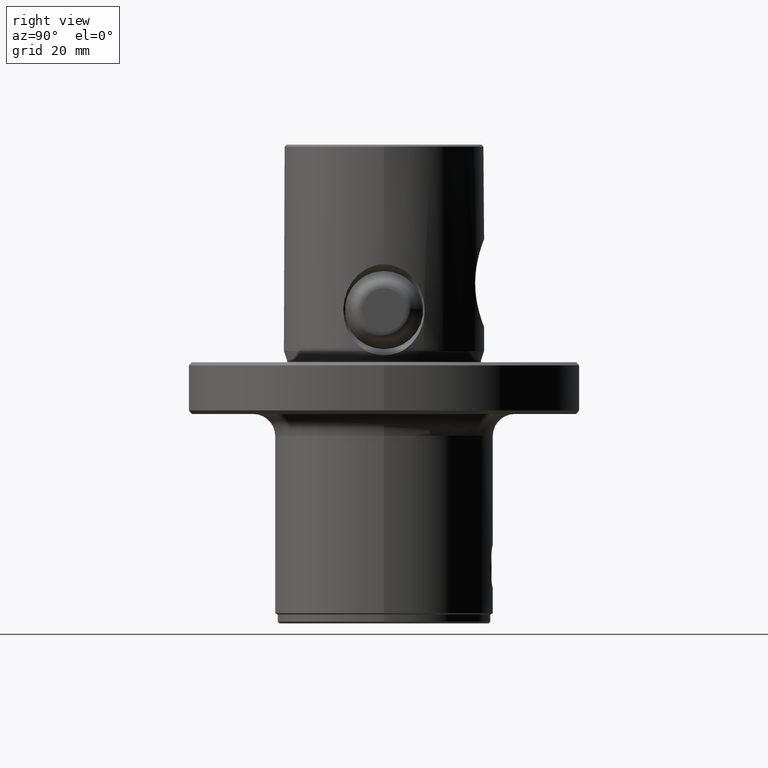
[diagram: clean part render]
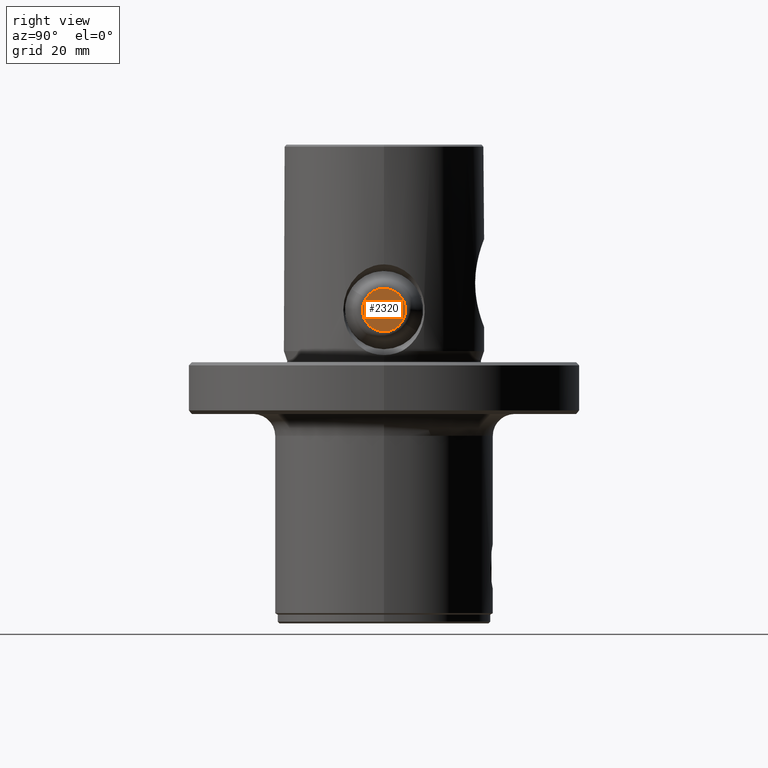
[diagram: same view with one face highlighted and labeled with its STEP entity id]
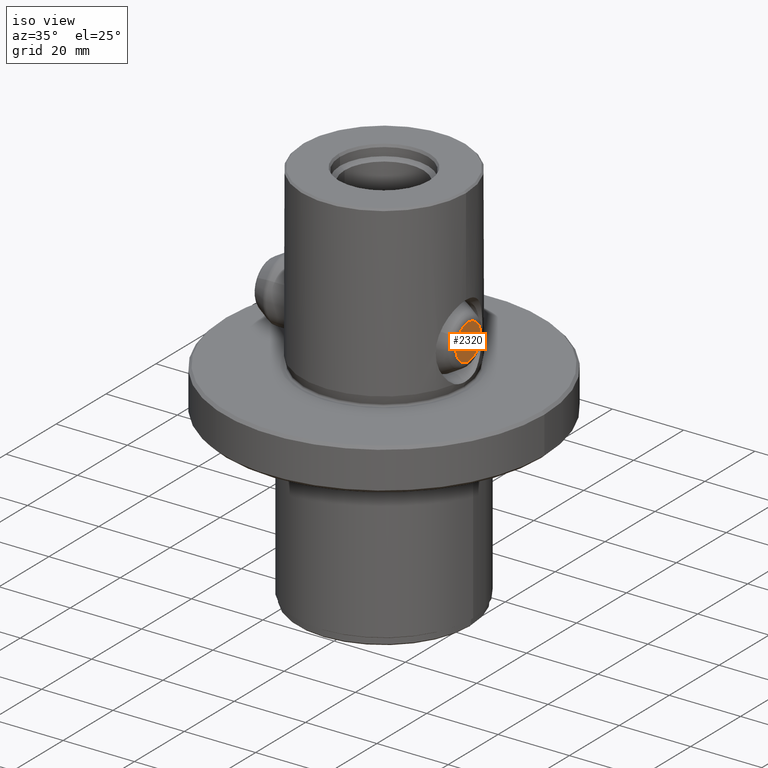
[diagram: same view with one face highlighted and labeled with its STEP entity id]
A machine part, right view. The second image highlights one B-rep face of the part: STEP entity #2320.
A second angle (iso view) of the same face is appended — the face is thin or edge-on in the first view.
In plain terms, the highlighted planar face has unit normal (-1, -0, -0).
Its self-contained STEP definition (entity closure, byte-faithful):
#922=EDGE_CURVE('Kante7',#1234,#1870,#2489,.T.);
#1234=VERTEX_POINT('NONE',#2838);
#1274=EDGE_CURVE('Kante7',#1870,#1234,#2879,.T.);
#1870=VERTEX_POINT('NONE',#3559);
#2320=ADVANCED_FACE('NONE',(#4055),#4056,.F.);
#2489=CIRCLE('',#4337,4.98741562913208);
#2838=CARTESIAN_POINT('',(23.6418700718685,4.18660714502964,9.28953227820418));
#2879=CIRCLE('',#5025,4.98741562913208);
#3559=CARTESIAN_POINT('',(23.6418700718685,-4.18660714502979,14.7104677217959));
#4055=FACE_OUTER_BOUND('',#7169,.T.);
#4056=PLANE('',#7170);
#4337=AXIS2_PLACEMENT_3D('',#7337,#7338,#7339);
#5025=AXIS2_PLACEMENT_3D('',#7826,#7827,#7828);
#7169=EDGE_LOOP('',(#9309,#9310));
#7170=AXIS2_PLACEMENT_3D('',#9311,#9312,#9313);
#7337=CARTESIAN_POINT('',(23.6418700718685,-6.59737021957429E-014,12.0));
#7338=DIRECTION('',(1.0,-2.07302448483506E-016,1.06091273474754E-016));
#7339=DIRECTION('',(2.3167326933244E-016,0.839434179212024,-0.543461368241235));
#7826=CARTESIAN_POINT('',(23.6418700718685,-6.59737021957429E-014,12.0));
#7827=DIRECTION('',(1.0,-2.07302448483506E-016,1.06091273474754E-016));
#7828=DIRECTION('',(2.3167326933244E-016,0.839434179212024,-0.543461368241235));
#9309=ORIENTED_EDGE('',*,*,#922,.T.);
#9310=ORIENTED_EDGE('',*,*,#1274,.T.);
#9311=CARTESIAN_POINT('',(23.6418700718685,-6.59737021957429E-014,12.0));
#9312=DIRECTION('',(-1.0,-5.10352132364635E-016,-1.21458549079436E-015));
#9313=DIRECTION('',(-1.29692124268752E-015,0.543461368241234,0.839434179212025));